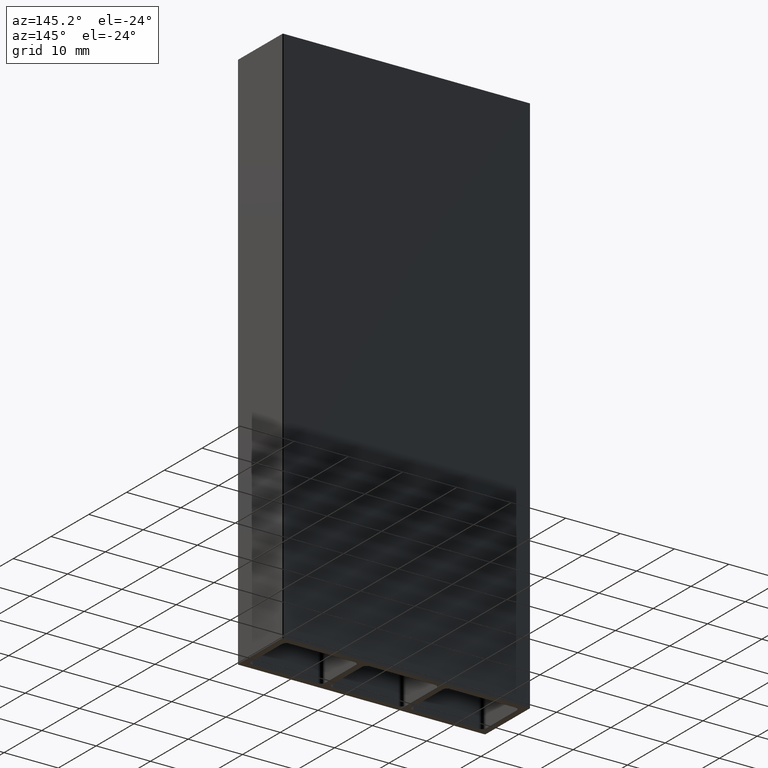
[diagram: clean part render]
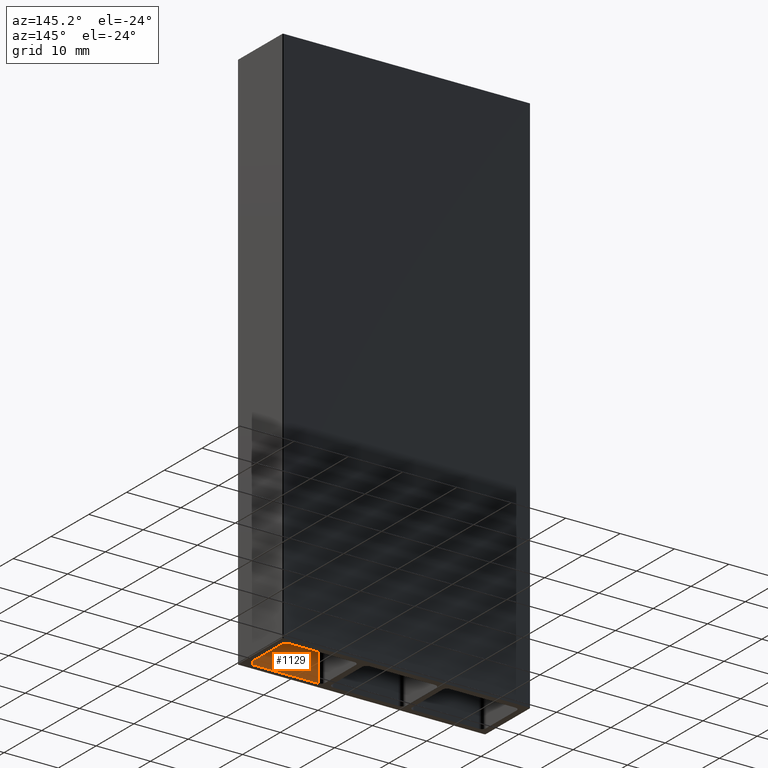
[diagram: same view with one face highlighted and labeled with its STEP entity id]
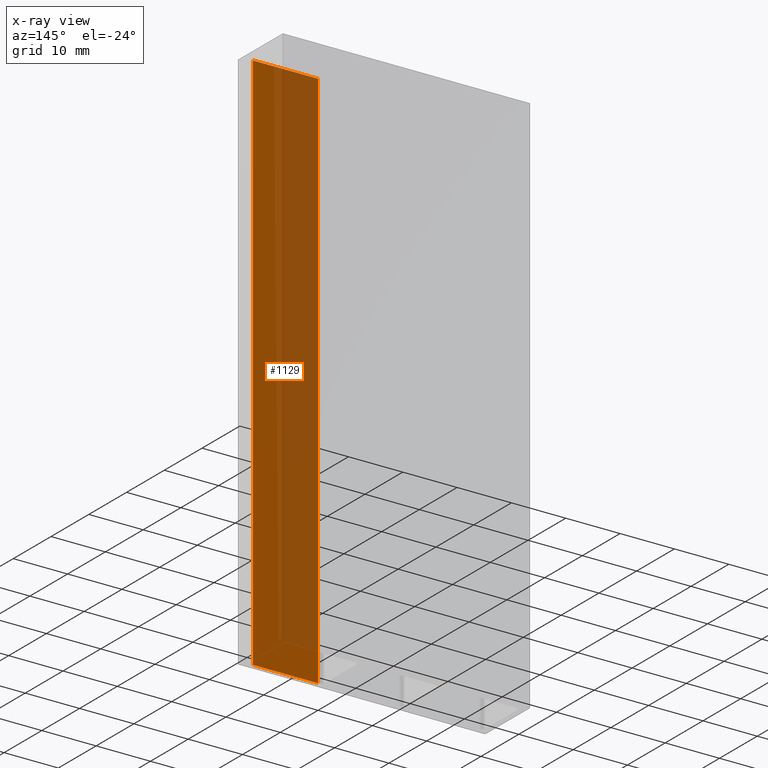
[diagram: x-ray of the same camera — body ghosted, the highlighted face saturated]
A machine part, auxiliary view. The second image highlights one B-rep face of the part: STEP entity #1129.
The next image is the same camera in x-ray: the body ghosted, the highlighted face saturated — about 61% of this face is hidden behind the body in this view.
In plain terms, the highlighted planar face has unit normal (0, 1, 0).
Its self-contained STEP definition (entity closure, byte-faithful):
#1 = DIRECTION ( 'NONE',  ( 1.000000000000000000, 0.0000000000000000000, 0.0000000000000000000 ) ) ;
#40 = ORIENTED_EDGE ( 'NONE', *, *, #826, .T. ) ;
#47 = VERTEX_POINT ( 'NONE', #1048 ) ;
#69 = LINE ( 'NONE', #798, #872 ) ;
#75 = DIRECTION ( 'NONE',  ( -0.0000000000000000000, -0.0000000000000000000, -1.000000000000000000 ) ) ;
#76 = EDGE_CURVE ( 'NONE', #801, #47, #1047, .T. ) ;
#148 = VECTOR ( 'NONE', #777, 1000.000000000000000 ) ;
#185 = VERTEX_POINT ( 'NONE', #877 ) ;
#248 = EDGE_LOOP ( 'NONE', ( #732, #623, #40, #403 ) ) ;
#280 = EDGE_CURVE ( 'NONE', #185, #47, #666, .T. ) ;
#291 = AXIS2_PLACEMENT_3D ( 'NONE', #1104, #1006, #455 ) ;
#403 = ORIENTED_EDGE ( 'NONE', *, *, #280, .T. ) ;
#432 = VERTEX_POINT ( 'NONE', #727 ) ;
#455 = DIRECTION ( 'NONE',  ( 0.0000000000000000000, -0.0000000000000000000, 1.000000000000000000 ) ) ;
#477 = CARTESIAN_POINT ( 'NONE',  ( 23.60000000000000900, -4.800000000000001600, -50.00000000000000000 ) ) ;
#577 = VECTOR ( 'NONE', #1195, 1000.000000000000000 ) ;
#623 = ORIENTED_EDGE ( 'NONE', *, *, #1111, .F. ) ;
#652 = CARTESIAN_POINT ( 'NONE',  ( 23.60000000000000900, -4.800000000000001600, -50.00000000000000000 ) ) ;
#666 = LINE ( 'NONE', #839, #710 ) ;
#710 = VECTOR ( 'NONE', #75, 1000.000000000000000 ) ;
#727 = CARTESIAN_POINT ( 'NONE',  ( 23.60000000000000900, -4.800000000000001600, 50.00000000000000000 ) ) ;
#732 = ORIENTED_EDGE ( 'NONE', *, *, #76, .F. ) ;
#736 = PLANE ( 'NONE',  #291 ) ;
#777 = DIRECTION ( 'NONE',  ( 1.000000000000000000, 0.0000000000000000000, 0.0000000000000000000 ) ) ;
#798 = CARTESIAN_POINT ( 'NONE',  ( 23.60000000000000900, -4.800000000000001600, 50.00000000000000000 ) ) ;
#801 = VERTEX_POINT ( 'NONE', #477 ) ;
#826 = EDGE_CURVE ( 'NONE', #432, #185, #69, .T. ) ;
#828 = FACE_OUTER_BOUND ( 'NONE', #248, .T. ) ;
#839 = CARTESIAN_POINT ( 'NONE',  ( 35.60000000000000100, -4.799999999999998900, 50.00000000000000000 ) ) ;
#872 = VECTOR ( 'NONE', #1, 1000.000000000000000 ) ;
#877 = CARTESIAN_POINT ( 'NONE',  ( 35.60000000000000100, -4.799999999999998900, 50.00000000000000000 ) ) ;
#923 = CARTESIAN_POINT ( 'NONE',  ( 23.60000000000000900, -4.800000000000001600, 50.00000000000000000 ) ) ;
#1006 = DIRECTION ( 'NONE',  ( 0.0000000000000000000, 1.000000000000000000, 0.0000000000000000000 ) ) ;
#1047 = LINE ( 'NONE', #652, #148 ) ;
#1048 = CARTESIAN_POINT ( 'NONE',  ( 35.60000000000000100, -4.799999999999998900, -50.00000000000000000 ) ) ;
#1104 = CARTESIAN_POINT ( 'NONE',  ( 23.60000000000000900, -4.800000000000001600, 50.00000000000000000 ) ) ;
#1111 = EDGE_CURVE ( 'NONE', #432, #801, #1174, .T. ) ;
#1129 = ADVANCED_FACE ( 'NONE', ( #828 ), #736, .T. ) ;
#1174 = LINE ( 'NONE', #923, #577 ) ;
#1195 = DIRECTION ( 'NONE',  ( -0.0000000000000000000, -0.0000000000000000000, -1.000000000000000000 ) ) ;